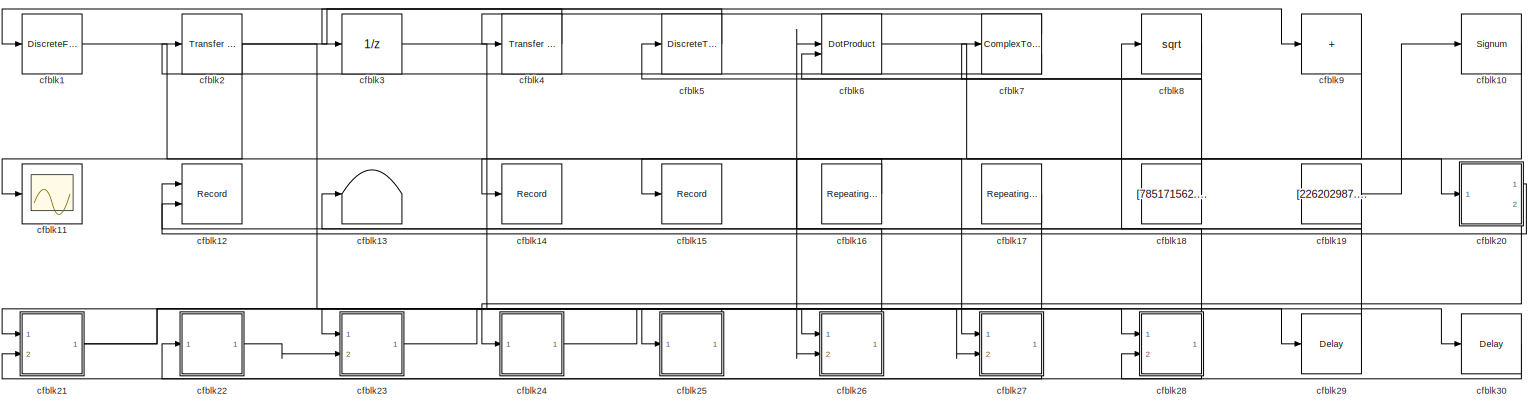
[diagram: root canvas - part 1/1, most of the canvas]
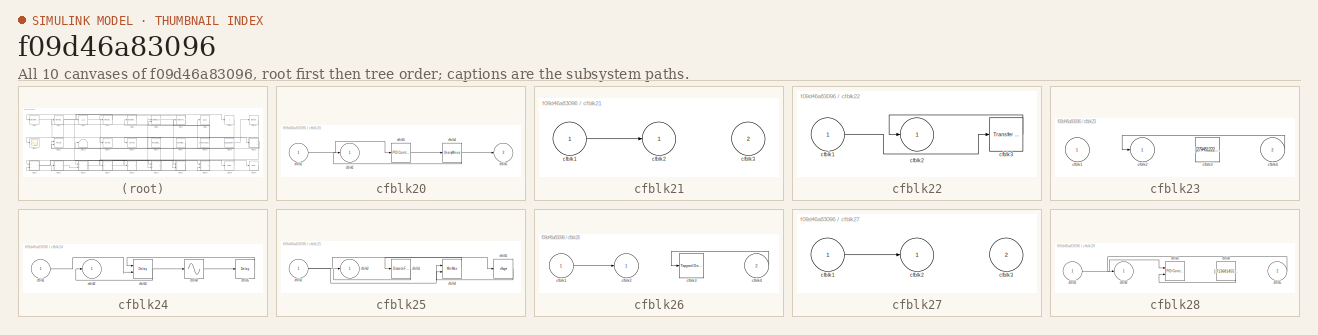
[diagram: thumbnail index - all 10 canvases of the model, root first then tree order]
MODEL slx_f09d46a83096
KIND model
CONFIG AbsTol = auto
CONFIG EnableMultiTasking = off
CONFIG FixedStep = auto
CONFIG MaxStep = auto
CONFIG MinStep = auto
CONFIG RelTol = 1e-3
CONFIG SampleTimeConstraint = Unconstrained
CONFIG SolverName = VariableStepAuto
CONFIG StartTime = 0.0
CONFIG StopTime = 10.0
BLOCK [DiscreteFilter] cfblk1
  InputPortMap = u0
  Ports = [1, 1]
  SampleTime = 1
BLOCK [Signum] cfblk10
BLOCK [Scope] cfblk11
  Floating = off
  NumInputPorts = 1
  Ports = [1]
BLOCK [Record] cfblk12
  CompatibilityTag = XY
  FileSettingsInternal = {"entries":[{"content":{"excelSettings":{"content":{},"type":"Streamout.ExcelSettings"}},"type":"Streamout.FileSettingStorage","uuid":"64901db9-d3df-4c2d-80e4-ed46b7a26c4e"}],"packageUris":["http://schema.mathworks.com/mf0/streamout_blocks/R2020a"],"version":"1.0"}
  Layout = [1 1]
  Ports = [2]
  SignalsInternal = {"entries":[{"content":{"signals":[{"content":{"blockPath":["sampleModel101/cfblk12"],"channel":[],"dimensions":[1],"domain":"sampleModel101/cfblk12","lineColor":"#a2142f","plots":[1],"port":1,"sid":[""],"signalID":3535,"signalName":"cfblk20:1"},"type":"RecordBlkView.Signal","uuid":"c1bb8fff-1eee-42a4-a43c-a2c53edb1294"},{"content":{"blockPath":["sampleModel101/cfblk12"],"channel":[],"dimensions":...<+385ch>
  VisualizationBindings = {"xyplotplugin":{"info":[{"series":[{"bindingParametersList":[{"parameter":"X-Axis","signalID":3535,"signalName":"cfblk20:1"},{"parameter":"Y-Axis","signalID":3539,"signalName":"cfblk19"}],"seriesID":47128}],"subplotID":1}]}}
BLOCK [Terminator] cfblk13
BLOCK [Record] cfblk14
  FileSettingsInternal = {"entries":[{"content":{"excelSettings":{"content":{},"type":"Streamout.ExcelSettings"}},"type":"Streamout.FileSettingStorage","uuid":"1408a99c-c449-4a04-9b09-497b2773fa78"}],"packageUris":["http://schema.mathworks.com/mf0/streamout_blocks/R2020a"],"version":"1.0"}
  Ports = [1]
  SignalsInternal = {"entries":[{"content":{"signals":[{"content":{"blockPath":["sampleModel101/cfblk14"],"channel":[],"dimensions":[1],"domain":"sampleModel101/cfblk14","lineColor":"#77ac30","plots":[1],"port":1,"sid":[""],"signalID":3547,"signalName":"cfblk16"},"type":"RecordBlkView.Signal","uuid":"aa42de53-d3a7-4804-a0a2-a0bacd373d50"}]},"type":"RecordBlkView.InputSignals","uuid":"894bc8c9-731b-4044-9809-6fb019a7c...<+97ch>
  VisualizationBindings = {"sparklinesplugin":{"info":[{"bindingParametersList":[],"subplotID":1}]}}
BLOCK [Record] cfblk15
  FileSettingsInternal = {"entries":[{"content":{"excelSettings":{"content":{},"type":"Streamout.ExcelSettings"}},"type":"Streamout.FileSettingStorage","uuid":"fa0eeccd-d30d-43fc-9d05-7064e6df6a4b"}],"packageUris":["http://schema.mathworks.com/mf0/streamout_blocks/R2020a"],"version":"1.0"}
  Ports = [1]
  SignalsInternal = {"entries":[{"content":{"signals":[{"content":{"blockPath":["sampleModel101/cfblk15"],"channel":[],"dimensions":[1],"domain":"sampleModel101/cfblk15","lineColor":"#7e2f8e","plots":[1],"port":1,"sid":[""],"signalID":3543,"signalName":"cfblk9"},"type":"RecordBlkView.Signal","uuid":"0b5d9315-5679-41fa-b24f-f523e701484c"}]},"type":"RecordBlkView.InputSignals","uuid":"dc346578-5e4c-4361-a153-64d522d192...<+96ch>
  VisualizationBindings = {"sparklinesplugin":{"info":[{"bindingParametersList":[],"subplotID":1}]}}
BLOCK [Reference] cfblk16  REF=simulink/Sources/Repeating
Sequence
  Ports = [0, 1]
  SourceBlock = simulink/Sources/Repeating\nSequence
  SourceProductBaseCode = SL
  SourceType = Repeating table
BLOCK [Reference] cfblk17  REF=simulink/Sources/Repeating
Sequence
Stair
  Ports = [0, 1]
  SourceBlock = simulink/Sources/Repeating\nSequence\nStair
  SourceProductBaseCode = SL
  SourceType = Repeating Sequence Stair
BLOCK [Constant] cfblk18
  SampleTime = 1
  Value = [785171562.407397]
BLOCK [Constant] cfblk19
  SampleTime = 1
  Value = [226202987.032415]
BLOCK [Reference] cfblk2  REF=simulink/Discrete/Transfer Fcn
First Order
  Ports = [1, 1]
  SourceBlock = simulink/Discrete/Transfer Fcn\nFirst Order
  SourceProductBaseCode = SL
  SourceType = First Order Transfer Fcn
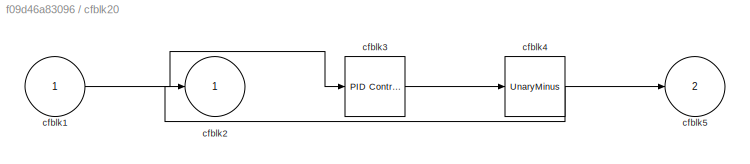
BLOCK [SubSystem] cfblk20
  Ports = [1, 2]
  RequestExecContextInheritance = off
BLOCK [Inport] cfblk20/cfblk1
BLOCK [Outport] cfblk20/cfblk2
BLOCK [Reference] cfblk20/cfblk3  REF=slpidlib/PID Controller
  Ports = [1, 1]
  SourceBlock = slpidlib/PID Controller
  SourceProductBaseCode = SL
  SourceType = PID 1dof
BLOCK [UnaryMinus] cfblk20/cfblk4
BLOCK [Outport] cfblk20/cfblk5
  Port = 2
BLOCK [SubSystem] cfblk21
  Ports = [2, 1]
  RequestExecContextInheritance = off
BLOCK [Inport] cfblk21/cfblk1
BLOCK [Outport] cfblk21/cfblk2
BLOCK [Inport] cfblk21/cfblk3
  Port = 2
BLOCK [SubSystem] cfblk22
  Ports = [1, 1]
  RequestExecContextInheritance = off
BLOCK [Inport] cfblk22/cfblk1
BLOCK [Outport] cfblk22/cfblk2
BLOCK [Reference] cfblk22/cfblk3  REF=simulink/Discrete/Transfer Fcn
Lead or Lag
  Ports = [1, 1]
  SourceBlock = simulink/Discrete/Transfer Fcn\nLead or Lag
  SourceProductBaseCode = SL
  SourceType = Lead or Lag Compensator
BLOCK [SubSystem] cfblk23
  Ports = [2, 1]
  RequestExecContextInheritance = off
BLOCK [Inport] cfblk23/cfblk1
BLOCK [Outport] cfblk23/cfblk2
BLOCK [Constant] cfblk23/cfblk3
  SampleTime = 1
  Value = [279451222.390785]
BLOCK [Inport] cfblk23/cfblk4
  Port = 2
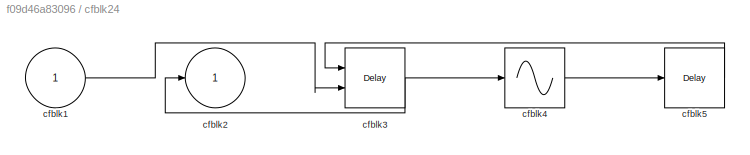
BLOCK [SubSystem] cfblk24
  Ports = [1, 1]
  RequestExecContextInheritance = off
BLOCK [Inport] cfblk24/cfblk1
BLOCK [Outport] cfblk24/cfblk2
BLOCK [Delay] cfblk24/cfblk3
  DelayLengthSource = Input port
  InputPortMap = u0,p1
  Ports = [2, 1]
  SampleTime = 1
BLOCK [Sin] cfblk24/cfblk4
  Ports = [1, 1]
  SampleTime = 0
  TimeSource = Use external signal
BLOCK [Delay] cfblk24/cfblk5
  InputPortMap = u0
  Ports = [1, 1]
  SampleTime = 1
BLOCK [SubSystem] cfblk25
  Ports = [1, 1]
  RequestExecContextInheritance = off
BLOCK [Inport] cfblk25/cfblk1
BLOCK [Outport] cfblk25/cfblk2
BLOCK [DiscreteFir] cfblk25/cfblk3
  InputPortMap = u0
  OutputPortMap = o0
  Ports = [1, 1]
  SampleTime = 1
BLOCK [MinMax] cfblk25/cfblk4
  Inputs = 2
  Ports = [2, 1]
BLOCK [Sqrt] cfblk25/cfblk5
  AlgorithmType = Newton-Raphson
  Operator = rSqrt
BLOCK [SubSystem] cfblk26
  Ports = [2, 1]
  RequestExecContextInheritance = off
BLOCK [Inport] cfblk26/cfblk1
BLOCK [Outport] cfblk26/cfblk2
BLOCK [Reference] cfblk26/cfblk3  REF=simulink/Discrete/Tapped Delay
  Ports = [1, 1]
  SourceBlock = simulink/Discrete/Tapped Delay
  SourceProductBaseCode = SL
  SourceType = Tapped Delay Line
BLOCK [Inport] cfblk26/cfblk4
  Port = 2
BLOCK [SubSystem] cfblk27
  Ports = [2, 1]
  RequestExecContextInheritance = off
BLOCK [Inport] cfblk27/cfblk1
BLOCK [Outport] cfblk27/cfblk2
BLOCK [Inport] cfblk27/cfblk3
  Port = 2
BLOCK [SubSystem] cfblk28
  Ports = [2, 1]
  RequestExecContextInheritance = off
BLOCK [Inport] cfblk28/cfblk1
BLOCK [Outport] cfblk28/cfblk2
BLOCK [Reference] cfblk28/cfblk3  REF=slpidlib/PID Controller (2DOF)
  Ports = [2, 1]
  SourceBlock = slpidlib/PID Controller (2DOF)
  SourceProductBaseCode = SL
  SourceType = PID 2dof
BLOCK [Constant] cfblk28/cfblk4
  SampleTime = 1
  Value = [-713681455.353530]
BLOCK [Inport] cfblk28/cfblk5
  Port = 2
BLOCK [Delay] cfblk29
  InputPortMap = u0
  Ports = [1, 1]
  SampleTime = 1
BLOCK [UnitDelay] cfblk3
  HasFrameUpgradeWarning = on
BLOCK [Delay] cfblk30
  InputPortMap = u0
  Ports = [1, 1]
  SampleTime = 1
BLOCK [Reference] cfblk4  REF=simulink/Discrete/Transfer Fcn
Lead or Lag
  Ports = [1, 1]
  SourceBlock = simulink/Discrete/Transfer Fcn\nLead or Lag
  SourceProductBaseCode = SL
  SourceType = Lead or Lag Compensator
BLOCK [DiscreteTransferFcn] cfblk5
  InputPortMap = u0
  Ports = [1, 1]
  SampleTime = 1
BLOCK [DotProduct] cfblk6
  OutDataTypeStr = Inherit: Inherit via internal rule
BLOCK [ComplexToMagnitudeAngle] cfblk7
  Ports = [1, 2]
BLOCK [Sqrt] cfblk8
BLOCK [Sum] cfblk9
  IconShape = rectangular
  Inputs = +
  Ports = [1, 1]
LINE cfblk10:1 -> cfblk26:2
LINE cfblk16:1 -> cfblk14:1
LINE cfblk17:1 -> cfblk23:1
NET cfblk18:1 -> cfblk5:1, cfblk7:1
NET cfblk19:1 -> cfblk10:1, cfblk12:2
LINE cfblk1:1 -> cfblk27:1
LINE cfblk20/cfblk1:1 -> cfblk20/cfblk3:1
LINE cfblk20/cfblk3:1 -> cfblk20/cfblk4:1
NET cfblk20/cfblk4:1 -> cfblk20/cfblk2:1, cfblk20/cfblk5:1
LINE cfblk20:1 -> cfblk12:1
LINE cfblk20:2 -> cfblk24:1
LINE cfblk21/cfblk1:1 -> cfblk21/cfblk2:1
NET cfblk21:1 -> cfblk26:1, cfblk30:1
LINE cfblk22/cfblk1:1 -> cfblk22/cfblk3:1
LINE cfblk22/cfblk3:1 -> cfblk22/cfblk2:1
LINE cfblk22:1 -> cfblk23:2
LINE cfblk23/cfblk4:1 -> cfblk23/cfblk2:1
LINE cfblk23:1 -> cfblk28:1
LINE cfblk24/cfblk1:1 -> cfblk24/cfblk3:2
NET cfblk24/cfblk3:1 -> cfblk24/cfblk2:1, cfblk24/cfblk4:1
LINE cfblk24/cfblk4:1 -> cfblk24/cfblk5:1
LINE cfblk24/cfblk5:1 -> cfblk24/cfblk3:1
LINE cfblk24:1 -> cfblk29:1
NET cfblk25/cfblk1:1 -> cfblk25/cfblk4:1, cfblk25/cfblk5:1
LINE cfblk25/cfblk3:1 -> cfblk25/cfblk2:1
LINE cfblk25/cfblk4:1 -> cfblk25/cfblk3:1
LINE cfblk25/cfblk5:1 -> cfblk25/cfblk4:2
LINE cfblk25:1 -> cfblk21:1
LINE cfblk26/cfblk1:1 -> cfblk26/cfblk2:1
LINE cfblk26/cfblk4:1 -> cfblk26/cfblk3:1
LINE cfblk26:1 -> cfblk13:1
LINE cfblk27/cfblk1:1 -> cfblk27/cfblk2:1
LINE cfblk27:1 -> cfblk22:1
LINE cfblk28/cfblk1:1 -> cfblk28/cfblk3:1
LINE cfblk28/cfblk4:1 -> cfblk28/cfblk3:2
LINE cfblk28/cfblk5:1 -> cfblk28/cfblk2:1
NET cfblk28:1 -> cfblk21:2, cfblk8:1
LINE cfblk29:1 -> cfblk6:1
NET cfblk2:1 -> cfblk11:1, cfblk27:2, cfblk9:1
LINE cfblk30:1 -> cfblk28:2
LINE cfblk3:1 -> cfblk25:1
LINE cfblk4:1 -> cfblk1:1
LINE cfblk5:1 -> cfblk3:1
LINE cfblk6:1 -> cfblk20:1
LINE cfblk7:1 -> cfblk4:1
LINE cfblk7:2 -> cfblk2:1
LINE cfblk8:1 -> cfblk6:2
LINE cfblk9:1 -> cfblk15:1
note: NET lines group one-source signal fan-out (src -> all destinations, sorted); 1:1 wires keep LINE
